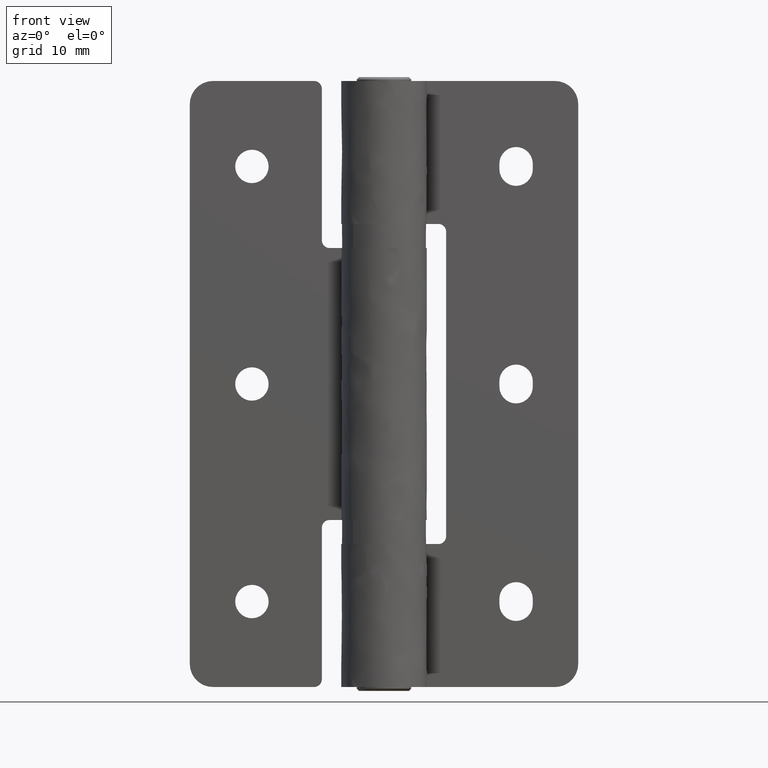
[diagram: clean part render]
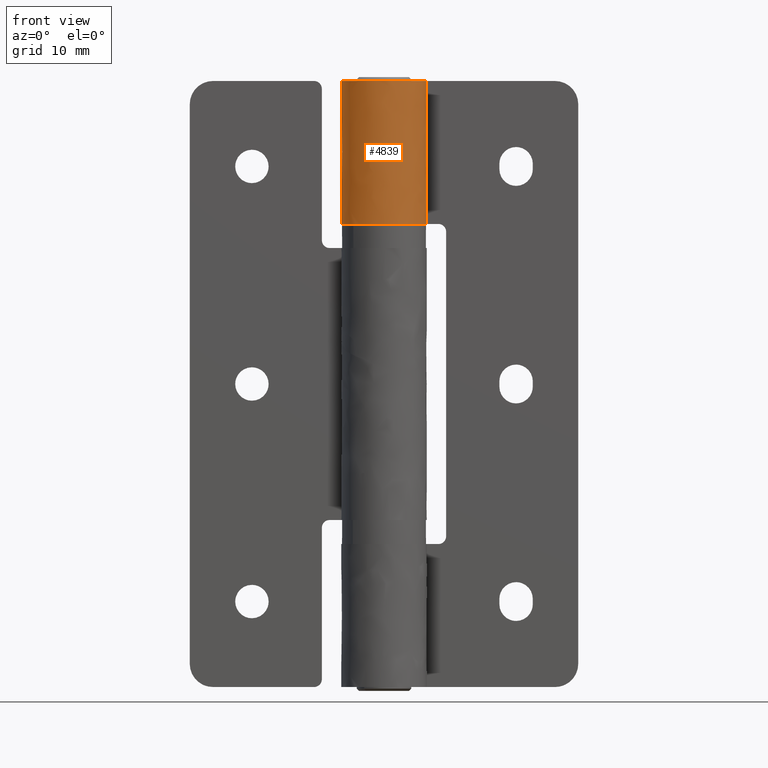
[diagram: same view with one face highlighted and labeled with its STEP entity id]
A machine part, front view. The second image highlights one B-rep face of the part: STEP entity #4839.
In plain terms, the highlighted face is a freeform B-spline surface patch.
Its self-contained STEP definition (entity closure, byte-faithful):
#3235=CARTESIAN_POINT('',(-1.010298E-015,5.500000000000229,59.600000000000001));
#3236=VERTEX_POINT('',#3235);
#3242=CARTESIAN_POINT('',(-1.010300E-015,5.500000000000000,78.0));
#3243=VERTEX_POINT('',#3242);
#3244=CARTESIAN_POINT('',(-1.010300E-015,5.500000000000000,78.0));
#3245=CARTESIAN_POINT('',(-1.010298E-015,5.500000000000229,59.600000000000001));
#3246=QUASI_UNIFORM_CURVE('',1,(#3244,#3245),.UNSPECIFIED.,.F.,.U.);
#3247=EDGE_CURVE('',#3243,#3236,#3246,.T.);
#3507=CARTESIAN_POINT('',(5.078391855980350,2.111856092898495,78.0));
#3508=VERTEX_POINT('',#3507);
#3514=CARTESIAN_POINT('',(4.609772228646420,3.000000000000035,77.0));
#3515=VERTEX_POINT('',#3514);
#3516=CARTESIAN_POINT('',(4.609772228646420,3.000000000000035,77.0));
#3517=CARTESIAN_POINT('',(4.792190710755767,2.719895476872116,77.334267908756672));
#3518=CARTESIAN_POINT('',(4.948834217426336,2.423012880456812,77.668539121144846));
#3519=CARTESIAN_POINT('',(5.078391855980350,2.111856092898495,78.0));
#3520=B_SPLINE_CURVE_WITH_KNOTS('',3,(#3516,#3517,#3518,#3519),.UNSPECIFIED.,.F.,.U.,(4,4),(3.874572E-010,1.418182002657645),.UNSPECIFIED.);
#3521=EDGE_CURVE('',#3515,#3508,#3520,.T.);
#3587=CARTESIAN_POINT('',(4.609772228646420,3.000000000000035,60.600000000000001));
#3588=VERTEX_POINT('',#3587);
#3594=CARTESIAN_POINT('',(5.078391855980420,2.111856092898340,59.600000000000001));
#3595=VERTEX_POINT('',#3594);
#3596=CARTESIAN_POINT('',(5.078391855980420,2.111856092898340,59.600000000000001));
#3597=CARTESIAN_POINT('',(4.948836634253776,2.423014900633882,59.931461253777513));
#3598=CARTESIAN_POINT('',(4.792188186317837,2.719893425639881,60.265731748988941));
#3599=CARTESIAN_POINT('',(4.609772228646420,3.000000000000035,60.600000000000001));
#3600=B_SPLINE_CURVE_WITH_KNOTS('',3,(#3596,#3597,#3598,#3599),.UNSPECIFIED.,.F.,.U.,(4,4),(3.874998E-010,1.418182002657765),.UNSPECIFIED.);
#3601=EDGE_CURVE('',#3595,#3588,#3600,.T.);
#4459=CARTESIAN_POINT('',(-3.052440328501119,-4.575216720652692,59.599999999999987));
#4460=VERTEX_POINT('',#4459);
#4461=CARTESIAN_POINT('',(-3.052440328501119,-4.575216720652692,59.599999999999987));
#4462=CARTESIAN_POINT('',(-2.748251711634920,-4.778193950320820,59.600000000000087));
#4463=CARTESIAN_POINT('',(-2.018090176905089,-5.166400944919285,59.599999999999909));
#4464=CARTESIAN_POINT('',(-0.844101371761789,-5.484011849846358,59.599999999999902));
#4465=CARTESIAN_POINT('',(0.350257886947591,-5.525548046272194,59.600000000000087));
#4466=CARTESIAN_POINT('',(1.310538279635849,-5.365930932735613,59.599999999999909));
#4467=CARTESIAN_POINT('',(2.300614138545284,-5.033260936382307,59.600000000000229));
#4468=CARTESIAN_POINT('',(3.167200122291303,-4.544250191995253,59.599999999999561));
#4469=CARTESIAN_POINT('',(4.092674559327794,-3.735512011318352,59.600000000000783));
#4470=CARTESIAN_POINT('',(4.767219088208430,-2.835515395499349,59.599999999997912));
#4471=CARTESIAN_POINT('',(5.200293470539893,-1.862186326771834,59.600000000003959));
#4472=CARTESIAN_POINT('',(5.439784402785647,-0.958895154399513,59.599999999997813));
#4473=CARTESIAN_POINT('',(5.540330421160391,0.046297281689665,59.600000000002566));
#4474=CARTESIAN_POINT('',(5.421233477143415,1.125664113421390,59.599999999996541));
#4475=CARTESIAN_POINT('',(5.197758219938296,1.824850923465569,59.599999999999483));
#4476=CARTESIAN_POINT('',(5.078391855980420,2.111856092898340,59.600000000000001));
#4477=B_SPLINE_CURVE_WITH_KNOTS('',3,(#4461,#4462,#4463,#4464,#4465,#4466,#4467,#4468,#4469,#4470,#4471,#4472,#4473,#4474,#4475,#4476),.UNSPECIFIED.,.F.,.U.,(4,1,1,1,1,1,1,1,1,1,1,1,1,4),(0.000000192438506,1.097090733094507,2.468478002896211,3.620436751958270,4.662683472108542,5.375808149515065,6.747212047754910,7.624841436710561,9.051081681100264,10.093323277748111,10.806447061730530,11.848712558046239,13.110368656833790,14.042891724530071),.UNSPECIFIED.);
#4478=EDGE_CURVE('',#4460,#3595,#4477,.T.);
#4480=CARTESIAN_POINT('',(-1.010298E-015,5.500000000000229,59.600000000000001));
#4481=CARTESIAN_POINT('',(-0.347401679201988,5.500036896517242,59.600000000000200));
#4482=CARTESIAN_POINT('',(-1.060488572813318,5.432209872926464,59.599999999999802));
#4483=CARTESIAN_POINT('',(-2.223001145415079,5.086439427537565,59.600000000000179));
#4484=CARTESIAN_POINT('',(-3.277630281997676,4.477548276648589,59.599999999999874));
#4485=CARTESIAN_POINT('',(-4.041415199000277,3.761460714424876,59.599999999999589));
#4486=CARTESIAN_POINT('',(-4.620081277708969,3.028381522073468,59.600000000000747));
#4487=CARTESIAN_POINT('',(-5.049799574069055,2.257610832524232,59.599999999998602));
#4488=CARTESIAN_POINT('',(-5.423755800808078,1.144762839026510,59.600000000000463));
#4489=CARTESIAN_POINT('',(-5.550994725481482,-0.010632322755513,59.600000000001849));
#4490=CARTESIAN_POINT('',(-5.409111586089059,-1.141123015103785,59.599999999995461));
#4491=CARTESIAN_POINT('',(-5.095620710733763,-2.157373998834680,59.600000000001920));
#4492=CARTESIAN_POINT('',(-4.585801740937963,-3.116193935968399,59.599999999999767));
#4493=CARTESIAN_POINT('',(-3.856241933774522,-3.967973916814501,59.599999999999802));
#4494=CARTESIAN_POINT('',(-3.311025020645828,-4.402720613316692,59.599999999996832));
#4495=CARTESIAN_POINT('',(-3.052440328501119,-4.575216720652692,59.599999999999987));
#4496=B_SPLINE_CURVE_WITH_KNOTS('',3,(#4480,#4481,#4482,#4483,#4484,#4485,#4486,#4487,#4488,#4489,#4490,#4491,#4492,#4493,#4494,#4495),.UNSPECIFIED.,.F.,.U.,(4,1,1,1,1,1,1,1,1,1,1,1,1,4),(0.000000192452971,1.042202789839065,2.139324214883805,3.620437136325513,4.662683967129100,5.266113165889488,6.418068709278146,7.295686348126288,8.776807930979814,9.873907003320545,10.696737506295950,11.958416375652959,13.110370048685420,14.042893215363179),.UNSPECIFIED.);
#4497=EDGE_CURVE('',#3236,#4460,#4496,.T.);
#4609=CARTESIAN_POINT('',(-3.052440328501008,-4.575216720652767,77.999999999999986));
#4610=VERTEX_POINT('',#4609);
#4611=CARTESIAN_POINT('',(-1.010300E-015,5.500000000000000,78.0));
#4612=CARTESIAN_POINT('',(-0.365699308857629,5.500048365869391,78.000000000000114));
#4613=CARTESIAN_POINT('',(-1.097075254749330,5.426787309522497,77.999999999999886));
#4614=CARTESIAN_POINT('',(-2.133112206443095,5.107255056596635,78.000000000000057));
#4615=CARTESIAN_POINT('',(-2.957964026745586,4.663312500417409,77.999999999999986));
#4616=CARTESIAN_POINT('',(-3.629617413149542,4.154494485325996,77.999999999999929));
#4617=CARTESIAN_POINT('',(-4.305585341774410,3.482016226041915,78.000000000000313));
#4618=CARTESIAN_POINT('',(-4.898769040120405,2.592999454571192,77.999999999999105));
#4619=CARTESIAN_POINT('',(-5.361534584221558,1.413751542673961,78.000000000000412));
#4620=CARTESIAN_POINT('',(-5.540381052071060,0.265988253893043,78.000000000000085));
#4621=CARTESIAN_POINT('',(-5.458220954170693,-0.906685873215569,77.999999999999631));
#4622=CARTESIAN_POINT('',(-5.217974850798252,-1.812078033044872,78.000000000000483));
#4623=CARTESIAN_POINT('',(-4.852705064049197,-2.632268401790432,77.999999999999730));
#4624=CARTESIAN_POINT('',(-4.230386166197916,-3.606622754095465,78.000000000000654));
#4625=CARTESIAN_POINT('',(-3.554625042139502,-4.240601744214672,77.999999999998209));
#4626=CARTESIAN_POINT('',(-3.052440328501008,-4.575216720652767,77.999999999999986));
#4627=B_SPLINE_CURVE_WITH_KNOTS('',3,(#4611,#4612,#4613,#4614,#4615,#4616,#4617,#4618,#4619,#4620,#4621,#4622,#4623,#4624,#4625,#4626),.UNSPECIFIED.,.F.,.U.,(4,1,1,1,1,1,1,1,1,1,1,1,1,4),(0.000000192455321,1.097090849563029,2.194199573423500,3.236445442146657,3.894717249780948,4.717556820952236,6.088913285202416,7.076254879785025,8.502529606016118,9.544763349055993,10.587027002353279,11.300155228051960,12.232688008601640,14.042893215363110),.UNSPECIFIED.);
#4628=EDGE_CURVE('',#3243,#4610,#4627,.T.);
#4630=CARTESIAN_POINT('',(-3.052440328501008,-4.575216720652767,77.999999999999986));
#4631=CARTESIAN_POINT('',(-2.672237269654063,-4.829023097617983,78.000000000000156));
#4632=CARTESIAN_POINT('',(-2.029386852311387,-5.150248728681143,77.999999999999943));
#4633=CARTESIAN_POINT('',(-1.075224892326988,-5.413440185416846,78.000000000000099));
#4634=CARTESIAN_POINT('',(-0.074543407556202,-5.538914396233494,77.999999999999758));
#4635=CARTESIAN_POINT('',(1.065034881620809,-5.447671916759459,78.000000000000298));
#4636=CARTESIAN_POINT('',(2.131618480799569,-5.100890418428057,77.999999999999503));
#4637=CARTESIAN_POINT('',(2.924557703005787,-4.679114553190774,78.000000000000739));
#4638=CARTESIAN_POINT('',(3.591788486228220,-4.194241054028588,77.999999999998423));
#4639=CARTESIAN_POINT('',(4.307223706974092,-3.482329276296655,78.000000000000824));
#4640=CARTESIAN_POINT('',(4.915860472080913,-2.560084321491054,77.999999999999673));
#4641=CARTESIAN_POINT('',(5.313143461625606,-1.532119476811078,78.000000000000668));
#4642=CARTESIAN_POINT('',(5.523948279507287,-0.432733091278364,77.999999999996263));
#4643=CARTESIAN_POINT('',(5.499145325634813,0.801649361820930,78.000000000009408));
#4644=CARTESIAN_POINT('',(5.253999721322951,1.689809302174255,77.999999999992070));
#4645=CARTESIAN_POINT('',(5.078391855980350,2.111856092898495,78.0));
#4646=B_SPLINE_CURVE_WITH_KNOTS('',3,(#4630,#4631,#4632,#4633,#4634,#4635,#4636,#4637,#4638,#4639,#4640,#4641,#4642,#4643,#4644,#4645),.UNSPECIFIED.,.F.,.U.,(4,1,1,1,1,1,1,1,1,1,1,1,1,4),(0.000000192438380,1.371366213960719,2.139323987761113,2.962165267969228,4.388408521541551,5.540386865613584,6.308375439445965,7.076254128549570,8.008796108044201,9.325358308209271,10.367602955109099,11.300154028388610,12.671532280490270,14.042891724530110),.UNSPECIFIED.);
#4647=EDGE_CURVE('',#4610,#3508,#4646,.T.);
#4803=CARTESIAN_POINT('',(0.143973215693309,5.498115287365563,78.459999999999994));
#4804=CARTESIAN_POINT('',(0.143973215693309,5.498115287365563,59.128499999999988));
#4805=CARTESIAN_POINT('',(-6.726984675535030,5.678037651810464,78.460000000000008));
#4806=CARTESIAN_POINT('',(-6.726984675535030,5.678037651810464,59.128500000000003));
#4807=CARTESIAN_POINT('',(-5.395873946643909,-1.065149919931211,78.459999999999994));
#4808=CARTESIAN_POINT('',(-5.395873946643909,-1.065149919931211,59.128499999999988));
#4809=CARTESIAN_POINT('',(-4.064763217752789,-7.808337491672885,78.460000000000008));
#4810=CARTESIAN_POINT('',(-4.064763217752789,-7.808337491672885,59.128500000000003));
#4811=CARTESIAN_POINT('',(2.222426414929547,-5.030986069372821,78.459999999999994));
#4812=CARTESIAN_POINT('',(2.222426414929547,-5.030986069372821,59.128499999999988));
#4813=CARTESIAN_POINT('',(8.509616047611882,-2.253634647072755,78.460000000000008));
#4814=CARTESIAN_POINT('',(8.509616047611882,-2.253634647072755,59.128500000000003));
#4815=CARTESIAN_POINT('',(4.421212733394699,3.271525327132370,78.459999999999994));
#4816=CARTESIAN_POINT('',(4.421212733394699,3.271525327132370,59.128499999999988));
#4824=(BOUNDED_SURFACE()B_SPLINE_SURFACE(1,2,((#4803,#4805,#4807,#4809,#4811,#4813,#4815),(#4804,#4806,#4808,#4810,#4812,#4814,#4816)),.UNSPECIFIED.,.F.,.F.,.U.)B_SPLINE_SURFACE_WITH_KNOTS((2,2),(3,2,2,3),(0.0,19.331500000000009),(0.0,10.572125807836480,21.144251615672960,31.716377423509439),.UNSPECIFIED.)GEOMETRIC_REPRESENTATION_ITEM()RATIONAL_B_SPLINE_SURFACE(((1.0,0.624788514543960,1.0,0.624788514543960,1.0,0.624788514543960,1.0),(1.0,0.624788514543960,1.0,0.624788514543960,1.0,0.624788514543960,1.0)))REPRESENTATION_ITEM('')SURFACE());
#4825=ORIENTED_EDGE('',*,*,#4497,.T.);
#4826=ORIENTED_EDGE('',*,*,#4478,.T.);
#4827=ORIENTED_EDGE('',*,*,#3601,.T.);
#4828=CARTESIAN_POINT('',(4.609772228646420,3.000000000000035,77.0));
#4829=CARTESIAN_POINT('',(4.609772228646420,3.000000000000035,60.600000000000001));
#4830=QUASI_UNIFORM_CURVE('',1,(#4828,#4829),.UNSPECIFIED.,.F.,.U.);
#4831=EDGE_CURVE('',#3515,#3588,#4830,.T.);
#4832=ORIENTED_EDGE('',*,*,#4831,.F.);
#4833=ORIENTED_EDGE('',*,*,#3521,.T.);
#4834=ORIENTED_EDGE('',*,*,#4647,.F.);
#4835=ORIENTED_EDGE('',*,*,#4628,.F.);
#4836=ORIENTED_EDGE('',*,*,#3247,.T.);
#4837=EDGE_LOOP('',(#4825,#4826,#4827,#4832,#4833,#4834,#4835,#4836));
#4838=FACE_OUTER_BOUND('',#4837,.T.);
#4839=ADVANCED_FACE('',(#4838),#4824,.T.);